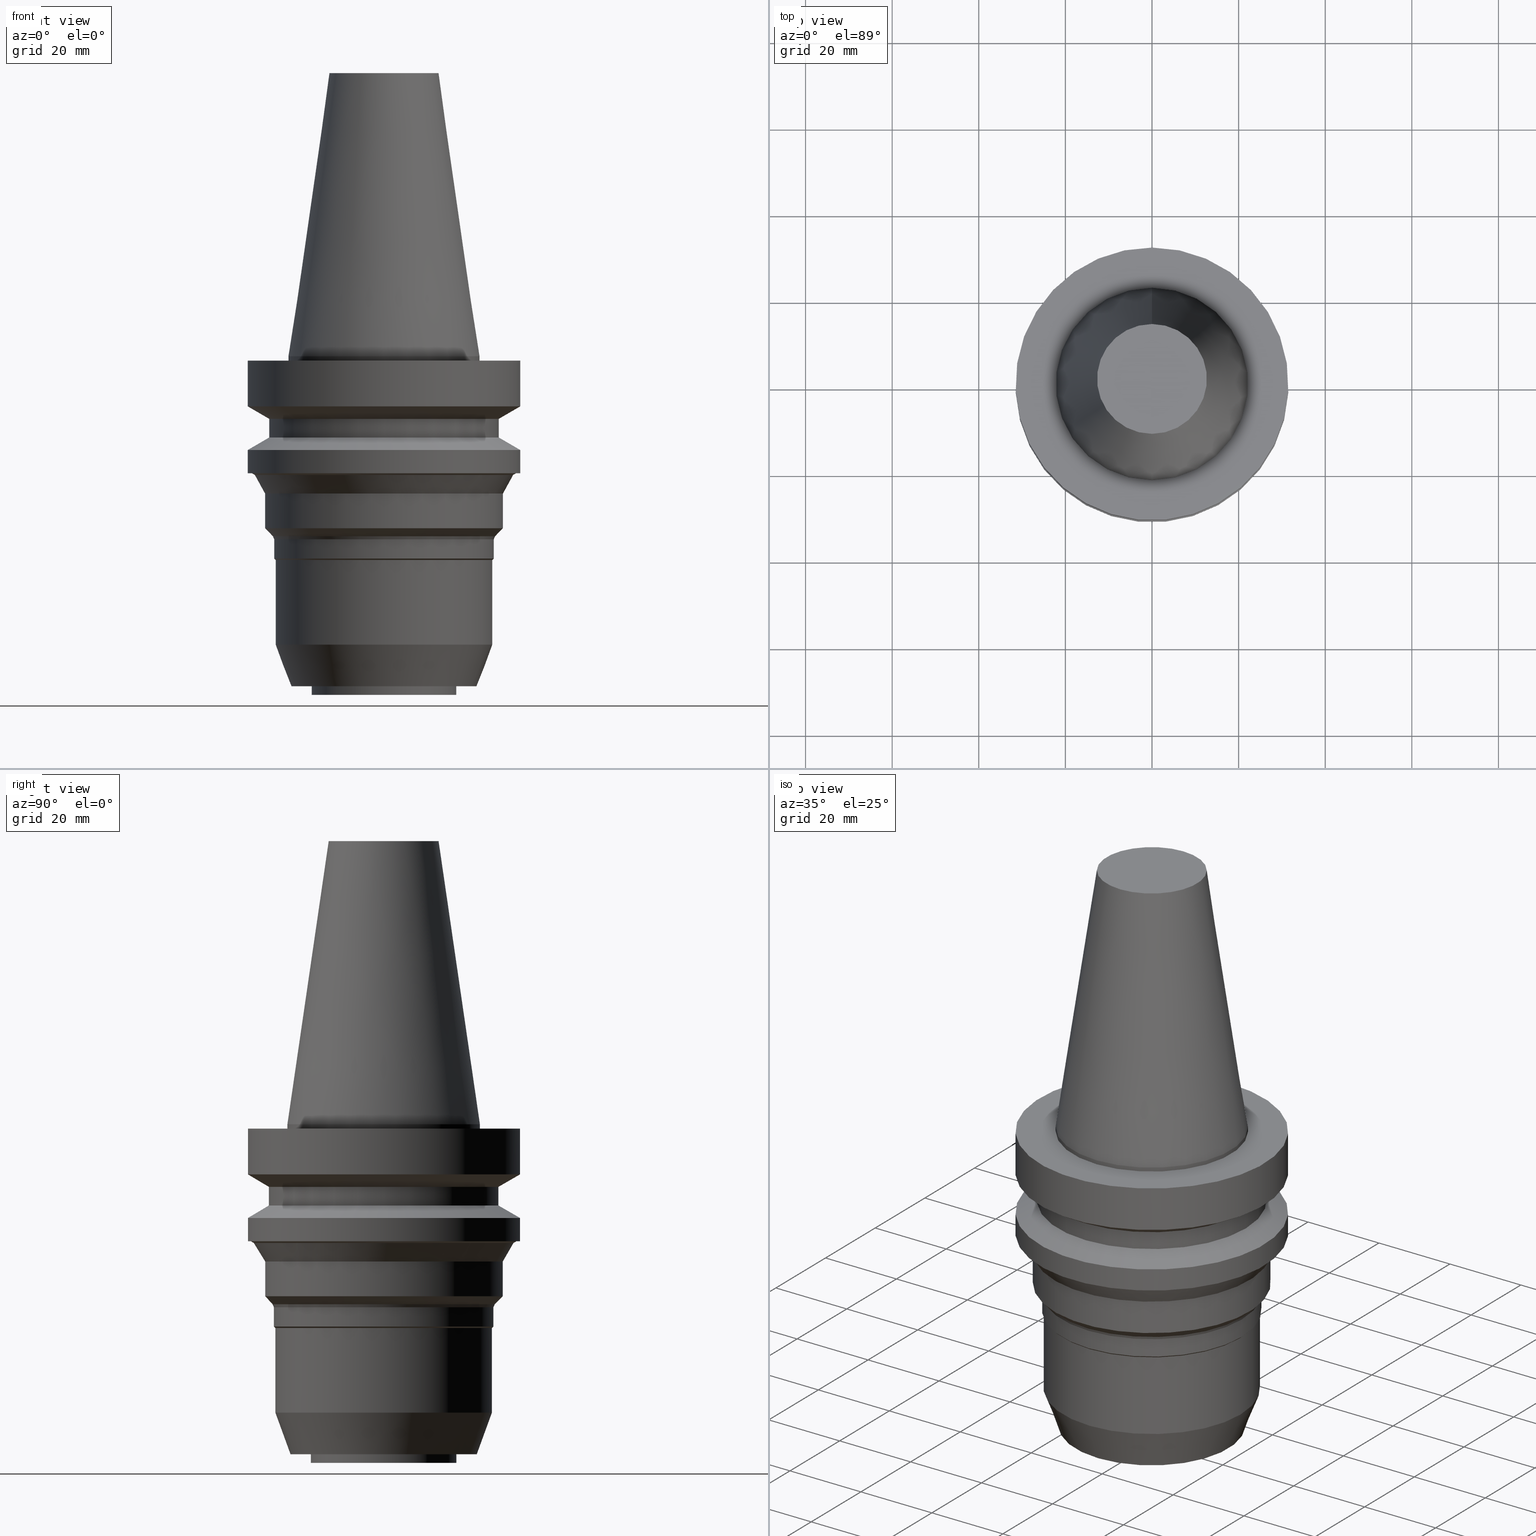
[diagram: canonical four-view strip — front | top / right | iso, engineering-drawing reading convention]
A machine part, canonical four-view strip (front | top / right | iso — engineering-drawing reading convention). The complete STEP part file that produces these views, byte-faithful:
ISO-10303-21;
HEADER;
FILE_DESCRIPTION((''),'1');
FILE_NAME('V:/90_\X2\53D65F9730C730FC30BF\X0\/00_\X2\6DE18DEF30C730FC30BF\X0\/ALL/BBT-BKUS\X2\FF76FF80FF9BFF78FF9E752852A05DE556F3\X0\201801/BBT40-MEGADS-A/BBT40-MEGA.750DS-3A.stp','2018-02-07T02:49:00',(''),(''),'Spatial Interop R21 SP3','Kubotek KeyCreator 2011 V10.0.2 (22737)',' ');
FILE_SCHEMA(('automotive_design'));
ENDSEC;
DATA;
#1=MECHANICAL_DESIGN_GEOMETRIC_PRESENTATION_REPRESENTATION(' ',(#10,#11,#12,#13,#14,#15,#16,#17,#18,#19,#20,#21,#22,#23,#24,#25,#26,#27,#28,#29,#30,#31,#32,#33,#34,#35,#36,#37,#38,#39,#40,#41,#42,#43,#44,#45,#46,#47,#48,#49,#50,#51,#52,#53),#6);
#2=PRODUCT_DEFINITION_CONTEXT('',#54,'design');
#3=APPLICATION_PROTOCOL_DEFINITION('INTERNATIONAL STANDARD','automotive_design',1994,#54);
#4=PRODUCT_CATEGORY_RELATIONSHIP('NONE','NONE',#55,#56);
#5=SHAPE_DEFINITION_REPRESENTATION(#57,#58);
#6= (GEOMETRIC_REPRESENTATION_CONTEXT(3)GLOBAL_UNCERTAINTY_ASSIGNED_CONTEXT((#61))GLOBAL_UNIT_ASSIGNED_CONTEXT((#63,#64,#65))REPRESENTATION_CONTEXT('NONE','WORKSPACE'));
#10=STYLED_ITEM('',(#67),#68);
#11=STYLED_ITEM('',(#69),#70);
#12=STYLED_ITEM('',(#71),#72);
#13=STYLED_ITEM('',(#73),#74);
#14=STYLED_ITEM('',(#75,#76),#77);
#15=STYLED_ITEM('',(#78,#79),#80);
#16=STYLED_ITEM('',(#81),#82);
#17=STYLED_ITEM('',(#83,#84),#85);
#18=STYLED_ITEM('',(#86,#87),#88);
#19=STYLED_ITEM('',(#89,#90),#91);
#20=STYLED_ITEM('',(#92,#93),#94);
#21=STYLED_ITEM('',(#95,#96),#97);
#22=STYLED_ITEM('',(#98),#99);
#23=STYLED_ITEM('',(#100,#101),#102);
#24=STYLED_ITEM('',(#103),#104);
#25=STYLED_ITEM('',(#105),#106);
#26=STYLED_ITEM('',(#107,#108),#109);
#27=STYLED_ITEM('',(#110),#111);
#28=STYLED_ITEM('',(#112),#113);
#29=STYLED_ITEM('',(#114),#115);
#30=STYLED_ITEM('',(#116,#117),#118);
#31=STYLED_ITEM('',(#119,#120),#121);
#32=STYLED_ITEM('',(#122),#123);
#33=STYLED_ITEM('',(#124),#125);
#34=STYLED_ITEM('',(#126),#127);
#35=STYLED_ITEM('',(#128),#129);
#36=STYLED_ITEM('',(#130),#131);
#37=STYLED_ITEM('',(#132),#133);
#38=STYLED_ITEM('',(#134),#135);
#39=STYLED_ITEM('',(#136,#137),#138);
#40=STYLED_ITEM('',(#139,#140),#141);
#41=STYLED_ITEM('',(#142,#143),#144);
#42=STYLED_ITEM('',(#145,#146),#147);
#43=STYLED_ITEM('',(#148,#149),#150);
#44=STYLED_ITEM('',(#151),#152);
#45=STYLED_ITEM('',(#153,#154),#155);
#46=STYLED_ITEM('',(#156),#157);
#47=STYLED_ITEM('',(#158,#159),#160);
#48=STYLED_ITEM('',(#161,#162),#163);
#49=STYLED_ITEM('',(#164,#165),#166);
#50=STYLED_ITEM('',(#167),#168);
#51=STYLED_ITEM('',(#169,#170),#171);
#52=STYLED_ITEM('',(#172,#173),#174);
#53=STYLED_ITEM('',(#175,#176),#177);
#54=APPLICATION_CONTEXT(' ');
#55=PRODUCT_CATEGORY('part','NONE');
#56=PRODUCT_RELATED_PRODUCT_CATEGORY('detail',' ',(#178));
#57=PRODUCT_DEFINITION_SHAPE('NONE','NONE',#179);
#58=ADVANCED_BREP_SHAPE_REPRESENTATION('Unnamed[1]',(#138,#180),#6);
#61=UNCERTAINTY_MEASURE_WITH_UNIT(LENGTH_MEASURE(1.0E-006),#63,'','');
#63= (CONVERSION_BASED_UNIT('MILLIMETRE',#183)LENGTH_UNIT()NAMED_UNIT(#186));
#64= (NAMED_UNIT(#188)PLANE_ANGLE_UNIT()SI_UNIT($,.RADIAN.));
#65= (NAMED_UNIT(#188)SOLID_ANGLE_UNIT()SI_UNIT($,.STERADIAN.));
#67=PRESENTATION_STYLE_ASSIGNMENT((#194));
#68=EDGE_CURVE('Unnamed[1]',#195,#195,#196,.T.);
#69=PRESENTATION_STYLE_ASSIGNMENT((#197));
#70=EDGE_CURVE('Unnamed[1]',#198,#198,#199,.T.);
#71=PRESENTATION_STYLE_ASSIGNMENT((#200));
#72=EDGE_CURVE('Unnamed[1]',#201,#201,#202,.T.);
#73=PRESENTATION_STYLE_ASSIGNMENT((#203));
#74=EDGE_CURVE('Unnamed[1]',#204,#204,#205,.T.);
#75=PRESENTATION_STYLE_ASSIGNMENT((#206));
#76=PRESENTATION_STYLE_ASSIGNMENT((#207));
#77=ADVANCED_FACE('Unnamed[1]',(#208,#209),#210,.T.);
#78=PRESENTATION_STYLE_ASSIGNMENT((#211));
#79=PRESENTATION_STYLE_ASSIGNMENT((#212));
#80=ADVANCED_FACE('Unnamed[1]',(#213,#214),#215,.T.);
#81=PRESENTATION_STYLE_ASSIGNMENT((#216));
#82=EDGE_CURVE('Unnamed[1]',#217,#217,#218,.T.);
#83=PRESENTATION_STYLE_ASSIGNMENT((#219));
#84=PRESENTATION_STYLE_ASSIGNMENT((#220));
#85=ADVANCED_FACE('Unnamed[1]',(#221,#222),#223,.T.);
#86=PRESENTATION_STYLE_ASSIGNMENT((#224));
#87=PRESENTATION_STYLE_ASSIGNMENT((#225));
#88=ADVANCED_FACE('Unnamed[1]',(#226,#227),#228,.T.);
#89=PRESENTATION_STYLE_ASSIGNMENT((#229));
#90=PRESENTATION_STYLE_ASSIGNMENT((#230));
#91=ADVANCED_FACE('Unnamed[1]',(#231),#232,.T.);
#92=PRESENTATION_STYLE_ASSIGNMENT((#233));
#93=PRESENTATION_STYLE_ASSIGNMENT((#234));
#94=ADVANCED_FACE('Unnamed[1]',(#235,#236),#237,.T.);
#95=PRESENTATION_STYLE_ASSIGNMENT((#238));
#96=PRESENTATION_STYLE_ASSIGNMENT((#239));
#97=ADVANCED_FACE('Unnamed[1]',(#240,#241),#242,.T.);
#98=PRESENTATION_STYLE_ASSIGNMENT((#243));
#99=EDGE_CURVE('Unnamed[1]',#244,#244,#245,.T.);
#100=PRESENTATION_STYLE_ASSIGNMENT((#246));
#101=PRESENTATION_STYLE_ASSIGNMENT((#247));
#102=ADVANCED_FACE('Unnamed[1]',(#248),#249,.T.);
#103=PRESENTATION_STYLE_ASSIGNMENT((#250));
#104=EDGE_CURVE('Unnamed[1]',#251,#251,#252,.T.);
#105=PRESENTATION_STYLE_ASSIGNMENT((#253));
#106=EDGE_CURVE('Unnamed[1]',#254,#254,#255,.T.);
#107=PRESENTATION_STYLE_ASSIGNMENT((#256));
#108=PRESENTATION_STYLE_ASSIGNMENT((#257));
#109=ADVANCED_FACE('Unnamed[1]',(#258,#259),#260,.T.);
#110=PRESENTATION_STYLE_ASSIGNMENT((#261));
#111=EDGE_CURVE('Unnamed[1]',#262,#262,#263,.T.);
#112=PRESENTATION_STYLE_ASSIGNMENT((#264));
#113=EDGE_CURVE('Unnamed[1]',#265,#265,#266,.T.);
#114=PRESENTATION_STYLE_ASSIGNMENT((#267));
#115=EDGE_CURVE('Unnamed[1]',#268,#268,#269,.T.);
#116=PRESENTATION_STYLE_ASSIGNMENT((#270));
#117=PRESENTATION_STYLE_ASSIGNMENT((#271));
#118=ADVANCED_FACE('Unnamed[1]',(#272,#273),#274,.T.);
#119=PRESENTATION_STYLE_ASSIGNMENT((#275));
#120=PRESENTATION_STYLE_ASSIGNMENT((#276));
#121=ADVANCED_FACE('Unnamed[1]',(#277,#278),#279,.T.);
#122=PRESENTATION_STYLE_ASSIGNMENT((#280));
#123=EDGE_CURVE('Unnamed[1]',#281,#281,#282,.T.);
#124=PRESENTATION_STYLE_ASSIGNMENT((#283));
#125=EDGE_CURVE('Unnamed[1]',#284,#284,#285,.T.);
#126=PRESENTATION_STYLE_ASSIGNMENT((#286));
#127=EDGE_CURVE('Unnamed[1]',#287,#287,#288,.T.);
#128=PRESENTATION_STYLE_ASSIGNMENT((#289));
#129=EDGE_CURVE('Unnamed[1]',#290,#290,#291,.T.);
#130=PRESENTATION_STYLE_ASSIGNMENT((#292));
#131=EDGE_CURVE('Unnamed[1]',#293,#293,#294,.T.);
#132=PRESENTATION_STYLE_ASSIGNMENT((#295));
#133=EDGE_CURVE('Unnamed[1]',#296,#296,#297,.T.);
#134=PRESENTATION_STYLE_ASSIGNMENT((#298));
#135=EDGE_CURVE('Unnamed[1]',#299,#299,#300,.T.);
#136=PRESENTATION_STYLE_ASSIGNMENT((#301));
#137=PRESENTATION_STYLE_ASSIGNMENT((#302));
#138=MANIFOLD_SOLID_BREP('Unnamed[1]',#303);
#139=PRESENTATION_STYLE_ASSIGNMENT((#304));
#140=PRESENTATION_STYLE_ASSIGNMENT((#305));
#141=ADVANCED_FACE('Unnamed[1]',(#306,#307),#308,.T.);
#142=PRESENTATION_STYLE_ASSIGNMENT((#309));
#143=PRESENTATION_STYLE_ASSIGNMENT((#310));
#144=ADVANCED_FACE('Unnamed[1]',(#311,#312),#313,.T.);
#145=PRESENTATION_STYLE_ASSIGNMENT((#314));
#146=PRESENTATION_STYLE_ASSIGNMENT((#315));
#147=ADVANCED_FACE('Unnamed[1]',(#316,#317),#318,.T.);
#148=PRESENTATION_STYLE_ASSIGNMENT((#319));
#149=PRESENTATION_STYLE_ASSIGNMENT((#320));
#150=ADVANCED_FACE('Unnamed[1]',(#321,#322),#323,.T.);
#151=PRESENTATION_STYLE_ASSIGNMENT((#324));
#152=EDGE_CURVE('Unnamed[1]',#325,#325,#326,.T.);
#153=PRESENTATION_STYLE_ASSIGNMENT((#327));
#154=PRESENTATION_STYLE_ASSIGNMENT((#328));
#155=ADVANCED_FACE('Unnamed[1]',(#329,#330),#331,.T.);
#156=PRESENTATION_STYLE_ASSIGNMENT((#332));
#157=EDGE_CURVE('Unnamed[1]',#333,#333,#334,.T.);
#158=PRESENTATION_STYLE_ASSIGNMENT((#335));
#159=PRESENTATION_STYLE_ASSIGNMENT((#336));
#160=ADVANCED_FACE('Unnamed[1]',(#337,#338),#339,.T.);
#161=PRESENTATION_STYLE_ASSIGNMENT((#340));
#162=PRESENTATION_STYLE_ASSIGNMENT((#341));
#163=ADVANCED_FACE('Unnamed[1]',(#342,#343),#344,.T.);
#164=PRESENTATION_STYLE_ASSIGNMENT((#345));
#165=PRESENTATION_STYLE_ASSIGNMENT((#346));
#166=ADVANCED_FACE('Unnamed[1]',(#347,#348),#349,.T.);
#167=PRESENTATION_STYLE_ASSIGNMENT((#350));
#168=EDGE_CURVE('Unnamed[1]',#351,#351,#352,.T.);
#169=PRESENTATION_STYLE_ASSIGNMENT((#353));
#170=PRESENTATION_STYLE_ASSIGNMENT((#354));
#171=ADVANCED_FACE('Unnamed[1]',(#355,#356),#357,.T.);
#172=PRESENTATION_STYLE_ASSIGNMENT((#358));
#173=PRESENTATION_STYLE_ASSIGNMENT((#359));
#174=ADVANCED_FACE('Unnamed[1]',(#360,#361),#362,.T.);
#175=PRESENTATION_STYLE_ASSIGNMENT((#363));
#176=PRESENTATION_STYLE_ASSIGNMENT((#364));
#177=ADVANCED_FACE('Unnamed[1]',(#365,#366),#367,.T.);
#178=PRODUCT('Unnamed[1]','Unnamed[1]','PART-Unnamed[1]-DESC',(#368));
#179=PRODUCT_DEFINITION('NONE','NONE',#369,#2);
#180=AXIS2_PLACEMENT_3D('',#370,#371,#372);
#183=LENGTH_MEASURE_WITH_UNIT(LENGTH_MEASURE(1.0),#373);
#186=DIMENSIONAL_EXPONENTS(1.0,0.0,0.0,0.0,0.0,0.0,0.0);
#188=DIMENSIONAL_EXPONENTS(0.0,0.0,0.0,0.0,0.0,0.0,0.0);
#194=CURVE_STYLE('',#374,POSITIVE_LENGTH_MEASURE(1000.0),#375);
#195=VERTEX_POINT('',#376);
#196=CIRCLE('',#377,31.5000000000003);
#197=CURVE_STYLE('',#378,POSITIVE_LENGTH_MEASURE(1000.0),#379);
#198=VERTEX_POINT('',#380);
#199=CIRCLE('',#381,29.9826061575155);
#200=CURVE_STYLE('',#382,POSITIVE_LENGTH_MEASURE(1000.0),#383);
#201=VERTEX_POINT('',#384);
#202=CIRCLE('',#385,27.5000000000001);
#203=CURVE_STYLE('',#386,POSITIVE_LENGTH_MEASURE(1000.0),#387);
#204=VERTEX_POINT('',#388);
#205=CIRCLE('',#389,25.6428932188133);
#206=SURFACE_STYLE_USAGE(.BOTH.,#390);
#207=CURVE_STYLE('',#391,POSITIVE_LENGTH_MEASURE(1000.0),#392);
#208=FACE_BOUND('',#393,.T.);
#209=FACE_BOUND('',#394,.T.);
#210=CONICAL_SURFACE('',#395,28.9999999999999,1.04719755119657);
#211=SURFACE_STYLE_USAGE(.BOTH.,#396);
#212=CURVE_STYLE('',#397,POSITIVE_LENGTH_MEASURE(1000.0),#398);
#213=FACE_BOUND('',#399,.T.);
#214=FACE_BOUND('',#400,.T.);
#215=CONICAL_SURFACE('',#401,25.1749999999999,0.785398163423961);
#216=CURVE_STYLE('',#402,POSITIVE_LENGTH_MEASURE(1000.0),#403);
#217=VERTEX_POINT('',#404);
#218=CIRCLE('',#405,30.6754264805441);
#219=SURFACE_STYLE_USAGE(.BOTH.,#406);
#220=CURVE_STYLE('',#407,POSITIVE_LENGTH_MEASURE(1000.0),#408);
#221=FACE_BOUND('',#409,.T.);
#222=FACE_BOUND('',#410,.T.);
#223=CONICAL_SURFACE('',#411,17.4562500000001,0.144812498238936);
#224=SURFACE_STYLE_USAGE(.BOTH.,#412);
#225=CURVE_STYLE('',#413,POSITIVE_LENGTH_MEASURE(1000.0),#414);
#226=FACE_OUTER_BOUND('',#415,.T.);
#227=FACE_BOUND('',#416,.T.);
#228=PLANE('',#417);
#229=SURFACE_STYLE_USAGE(.BOTH.,#418);
#230=CURVE_STYLE('',#419,POSITIVE_LENGTH_MEASURE(1000.0),#420);
#231=FACE_OUTER_BOUND('',#421,.T.);
#232=PLANE('',#422);
#233=SURFACE_STYLE_USAGE(.BOTH.,#423);
#234=CURVE_STYLE('',#424,POSITIVE_LENGTH_MEASURE(1000.0),#425);
#235=FACE_BOUND('',#426,.T.);
#236=FACE_BOUND('',#427,.T.);
#237=CONICAL_SURFACE('',#428,29.0000000000003,1.04719755119651);
#238=SURFACE_STYLE_USAGE(.BOTH.,#429);
#239=CURVE_STYLE('',#430,POSITIVE_LENGTH_MEASURE(1000.0),#431);
#240=FACE_BOUND('',#432,.T.);
#241=FACE_OUTER_BOUND('',#433,.T.);
#242=PLANE('',#434);
#243=CURVE_STYLE('',#435,POSITIVE_LENGTH_MEASURE(1000.0),#436);
#244=VERTEX_POINT('',#437);
#245=CIRCLE('',#438,31.5000000000003);
#246=SURFACE_STYLE_USAGE(.BOTH.,#439);
#247=CURVE_STYLE('',#440,POSITIVE_LENGTH_MEASURE(1000.0),#441);
#248=FACE_OUTER_BOUND('',#442,.T.);
#249=PLANE('',#443);
#250=CURVE_STYLE('',#444,POSITIVE_LENGTH_MEASURE(1000.0),#445);
#251=VERTEX_POINT('',#446);
#252=CIRCLE('',#447,22.225);
#253=CURVE_STYLE('',#448,POSITIVE_LENGTH_MEASURE(1000.0),#449);
#254=VERTEX_POINT('',#450);
#255=CIRCLE('',#451,31.5000000000007);
#256=SURFACE_STYLE_USAGE(.BOTH.,#452);
#257=CURVE_STYLE('',#453,POSITIVE_LENGTH_MEASURE(1000.0),#454);
#258=FACE_BOUND('',#455,.T.);
#259=FACE_BOUND('',#456,.T.);
#260=CYLINDRICAL_SURFACE('',#457,25.3499999999998);
#261=CURVE_STYLE('',#458,POSITIVE_LENGTH_MEASURE(1000.0),#459);
#262=VERTEX_POINT('',#460);
#263=CIRCLE('',#461,22.225);
#264=CURVE_STYLE('',#462,POSITIVE_LENGTH_MEASURE(1000.0),#463);
#265=VERTEX_POINT('',#464);
#266=CIRCLE('',#465,31.4999999999996);
#267=CURVE_STYLE('',#466,POSITIVE_LENGTH_MEASURE(1000.0),#467);
#268=VERTEX_POINT('',#468);
#269=CIRCLE('',#469,25.3499999999998);
#270=SURFACE_STYLE_USAGE(.BOTH.,#470);
#271=CURVE_STYLE('',#471,POSITIVE_LENGTH_MEASURE(1000.0),#472);
#272=FACE_BOUND('',#473,.T.);
#273=FACE_BOUND('',#474,.T.);
#274=CYLINDRICAL_SURFACE('',#475,31.5);
#275=SURFACE_STYLE_USAGE(.BOTH.,#476);
#276=CURVE_STYLE('',#477,POSITIVE_LENGTH_MEASURE(1000.0),#478);
#277=FACE_BOUND('',#479,.T.);
#278=FACE_BOUND('',#480,.T.);
#279=CYLINDRICAL_SURFACE('',#481,26.4999999999997);
#280=CURVE_STYLE('',#482,POSITIVE_LENGTH_MEASURE(1000.0),#483);
#281=VERTEX_POINT('',#484);
#282=CIRCLE('',#485,26.4999999999994);
#283=CURVE_STYLE('',#486,POSITIVE_LENGTH_MEASURE(1000.0),#487);
#284=VERTEX_POINT('',#488);
#285=CIRCLE('',#489,25.0);
#286=CURVE_STYLE('',#490,POSITIVE_LENGTH_MEASURE(1000.0),#491);
#287=VERTEX_POINT('',#492);
#288=CIRCLE('',#493,26.5);
#289=CURVE_STYLE('',#494,POSITIVE_LENGTH_MEASURE(1000.0),#495);
#290=VERTEX_POINT('',#496);
#291=CIRCLE('',#497,16.7999999999864);
#292=CURVE_STYLE('',#498,POSITIVE_LENGTH_MEASURE(1000.0),#499);
#293=VERTEX_POINT('',#500);
#294=CIRCLE('',#501,21.5000000000012);
#295=CURVE_STYLE('',#502,POSITIVE_LENGTH_MEASURE(1000.0),#503);
#296=VERTEX_POINT('',#504);
#297=CIRCLE('',#505,27.5000000000002);
#298=CURVE_STYLE('',#506,POSITIVE_LENGTH_MEASURE(1000.0),#507);
#299=VERTEX_POINT('',#508);
#300=CIRCLE('',#509,16.8000000000003);
#301=SURFACE_STYLE_USAGE(.BOTH.,#510);
#302=CURVE_STYLE('',#511,POSITIVE_LENGTH_MEASURE(1000.0),#512);
#303=CLOSED_SHELL('',(#102,#85,#171,#88,#118,#77,#121,#94,#174,#141,#177,#163,#150,#155,#147,#109,#80,#144,#166,#97,#160,#91));
#304=SURFACE_STYLE_USAGE(.BOTH.,#513);
#305=CURVE_STYLE('',#514,POSITIVE_LENGTH_MEASURE(1000.0),#515);
#306=FACE_BOUND('',#516,.T.);
#307=FACE_OUTER_BOUND('',#517,.T.);
#308=PLANE('',#518);
#309=SURFACE_STYLE_USAGE(.BOTH.,#519);
#310=CURVE_STYLE('',#520,POSITIVE_LENGTH_MEASURE(1000.0),#521);
#311=FACE_BOUND('',#522,.T.);
#312=FACE_BOUND('',#523,.T.);
#313=CYLINDRICAL_SURFACE('',#524,25.0);
#314=SURFACE_STYLE_USAGE(.BOTH.,#525);
#315=CURVE_STYLE('',#526,POSITIVE_LENGTH_MEASURE(1000.0),#527);
#316=FACE_BOUND('',#528,.T.);
#317=FACE_BOUND('',#529,.T.);
#318=CONICAL_SURFACE('',#530,25.4964466094066,0.392699081698752);
#319=SURFACE_STYLE_USAGE(.BOTH.,#531);
#320=CURVE_STYLE('',#532,POSITIVE_LENGTH_MEASURE(1000.0),#533);
#321=FACE_BOUND('',#534,.T.);
#322=FACE_BOUND('',#535,.T.);
#323=CYLINDRICAL_SURFACE('',#536,27.5000000000002);
#324=CURVE_STYLE('',#537,POSITIVE_LENGTH_MEASURE(1000.0),#538);
#325=VERTEX_POINT('',#539);
#326=CIRCLE('',#540,12.6875000000001);
#327=SURFACE_STYLE_USAGE(.BOTH.,#541);
#328=CURVE_STYLE('',#542,POSITIVE_LENGTH_MEASURE(1000.0),#543);
#329=FACE_BOUND('',#544,.T.);
#330=FACE_BOUND('',#545,.T.);
#331=CONICAL_SURFACE('',#546,26.5714466094068,0.785398163397476);
#332=CURVE_STYLE('',#547,POSITIVE_LENGTH_MEASURE(1000.0),#548);
#333=VERTEX_POINT('',#549);
#334=CIRCLE('',#550,25.3499999999999);
#335=SURFACE_STYLE_USAGE(.BOTH.,#551);
#336=CURVE_STYLE('',#552,POSITIVE_LENGTH_MEASURE(1000.0),#553);
#337=FACE_BOUND('',#554,.T.);
#338=FACE_BOUND('',#555,.T.);
#339=CYLINDRICAL_SURFACE('',#556,16.7999999999934);
#340=SURFACE_STYLE_USAGE(.BOTH.,#557);
#341=CURVE_STYLE('',#558,POSITIVE_LENGTH_MEASURE(1000.0),#559);
#342=FACE_BOUND('',#560,.T.);
#343=FACE_BOUND('',#561,.T.);
#344=CONICAL_SURFACE('',#562,28.7413030787578,0.523598775597999);
#345=SURFACE_STYLE_USAGE(.BOTH.,#563);
#346=CURVE_STYLE('',#564,POSITIVE_LENGTH_MEASURE(1000.0),#565);
#347=FACE_BOUND('',#566,.T.);
#348=FACE_BOUND('',#567,.T.);
#349=CONICAL_SURFACE('',#568,23.2500000000007,0.349065850399004);
#350=CURVE_STYLE('',#569,POSITIVE_LENGTH_MEASURE(1000.0),#570);
#351=VERTEX_POINT('',#571);
#352=CIRCLE('',#572,25.0000000000001);
#353=SURFACE_STYLE_USAGE(.BOTH.,#573);
#354=CURVE_STYLE('',#574,POSITIVE_LENGTH_MEASURE(1000.0),#575);
#355=FACE_BOUND('',#576,.T.);
#356=FACE_BOUND('',#577,.T.);
#357=CYLINDRICAL_SURFACE('',#578,22.225);
#358=SURFACE_STYLE_USAGE(.BOTH.,#579);
#359=CURVE_STYLE('',#580,POSITIVE_LENGTH_MEASURE(1000.0),#581);
#360=FACE_BOUND('',#582,.T.);
#361=FACE_BOUND('',#583,.T.);
#362=CYLINDRICAL_SURFACE('',#584,31.5000000000005);
#363=SURFACE_STYLE_USAGE(.BOTH.,#585);
#364=CURVE_STYLE('',#586,POSITIVE_LENGTH_MEASURE(1000.0),#587);
#365=FACE_BOUND('',#588,.T.);
#366=FACE_BOUND('',#589,.T.);
#367=CONICAL_SURFACE('',#590,30.3290163190298,1.04719755119793);
#368=PRODUCT_CONTEXT('',#54,'mechanical');
#369=PRODUCT_DEFINITION_FORMATION_WITH_SPECIFIED_SOURCE(' ','NONE',#178,.NOT_KNOWN.);
#370=CARTESIAN_POINT('',(0.0,0.0,0.0));
#371=DIRECTION('',(0.0,0.0,1.0));
#372=DIRECTION('',(1.0,0.0,0.0));
#373= (NAMED_UNIT(#186)LENGTH_UNIT()SI_UNIT(.MILLI.,.METRE.));
#374=DRAUGHTING_PRE_DEFINED_CURVE_FONT('continuous');
#375=COLOUR_RGB('',0.0,1.0,0.0);
#376=CARTESIAN_POINT('',(7.08182973902924E-016,31.5000000000004,-11.5655056526664));
#377=AXIS2_PLACEMENT_3D('',#592,#593,#594);
#378=DRAUGHTING_PRE_DEFINED_CURVE_FONT('continuous');
#379=COLOUR_RGB('',0.0,1.0,0.0);
#380=CARTESIAN_POINT('',(1.67776611483183E-015,29.9826061575155,-27.3999999999993));
#381=AXIS2_PLACEMENT_3D('',#595,#596,#597);
#382=DRAUGHTING_PRE_DEFINED_CURVE_FONT('continuous');
#383=COLOUR_RGB('',0.0,1.0,0.0);
#384=CARTESIAN_POINT('',(1.94106517664869E-015,27.5000000000002,-31.7000000000022));
#385=AXIS2_PLACEMENT_3D('',#598,#599,#600);
#386=DRAUGHTING_PRE_DEFINED_CURVE_FONT('continuous');
#387=COLOUR_RGB('',0.0,1.0,0.0);
#388=CARTESIAN_POINT('',(2.54461912698172E-015,25.6428932188133,-41.5567840254574));
#389=AXIS2_PLACEMENT_3D('',#601,#602,#603);
#390=SURFACE_SIDE_STYLE('',(#604));
#391=DRAUGHTING_PRE_DEFINED_CURVE_FONT('continuous');
#392=COLOUR_RGB('',0.0,1.0,0.0);
#393=EDGE_LOOP('',(#605));
#394=EDGE_LOOP('',(#606));
#395=AXIS2_PLACEMENT_3D('',#607,#608,#609);
#396=SURFACE_SIDE_STYLE('',(#610));
#397=DRAUGHTING_PRE_DEFINED_CURVE_FONT('continuous');
#398=COLOUR_RGB('',0.0,1.0,0.0);
#399=EDGE_LOOP('',(#611));
#400=EDGE_LOOP('',(#612));
#401=AXIS2_PLACEMENT_3D('',#613,#614,#615);
#402=DRAUGHTING_PRE_DEFINED_CURVE_FONT('continuous');
#403=COLOUR_RGB('',0.0,1.0,0.0);
#404=CARTESIAN_POINT('',(1.65327317884892E-015,30.6754264805441,-26.9999999999999));
#405=AXIS2_PLACEMENT_3D('',#616,#617,#618);
#406=SURFACE_SIDE_STYLE('',(#619));
#407=DRAUGHTING_PRE_DEFINED_CURVE_FONT('continuous');
#408=COLOUR_RGB('',0.0,1.0,0.0);
#409=EDGE_LOOP('',(#620));
#410=EDGE_LOOP('',(#621));
#411=AXIS2_PLACEMENT_3D('',#622,#623,#624);
#412=SURFACE_SIDE_STYLE('',(#625));
#413=DRAUGHTING_PRE_DEFINED_CURVE_FONT('continuous');
#414=COLOUR_RGB('',0.0,1.0,0.0);
#415=EDGE_LOOP('',(#626));
#416=EDGE_LOOP('',(#627));
#417=AXIS2_PLACEMENT_3D('',#628,#629,#630);
#418=SURFACE_SIDE_STYLE('',(#631));
#419=DRAUGHTING_PRE_DEFINED_CURVE_FONT('continuous');
#420=COLOUR_RGB('',0.0,1.0,0.0);
#421=EDGE_LOOP('',(#632));
#422=AXIS2_PLACEMENT_3D('',#633,#634,#635);
#423=SURFACE_SIDE_STYLE('',(#636));
#424=DRAUGHTING_PRE_DEFINED_CURVE_FONT('continuous');
#425=COLOUR_RGB('',0.0,1.0,0.0);
#426=EDGE_LOOP('',(#637));
#427=EDGE_LOOP('',(#638));
#428=AXIS2_PLACEMENT_3D('',#639,#640,#641);
#429=SURFACE_SIDE_STYLE('',(#642));
#430=DRAUGHTING_PRE_DEFINED_CURVE_FONT('continuous');
#431=COLOUR_RGB('',0.0,1.0,0.0);
#432=EDGE_LOOP('',(#643));
#433=EDGE_LOOP('',(#644));
#434=AXIS2_PLACEMENT_3D('',#645,#646,#647);
#435=DRAUGHTING_PRE_DEFINED_CURVE_FONT('continuous');
#436=COLOUR_RGB('',0.0,1.0,0.0);
#437=CARTESIAN_POINT('',(1.65327317884891E-015,31.5000000000004,-26.9999999999998));
#438=AXIS2_PLACEMENT_3D('',#648,#649,#650);
#439=SURFACE_SIDE_STYLE('',(#651));
#440=DRAUGHTING_PRE_DEFINED_CURVE_FONT('continuous');
#441=COLOUR_RGB('',0.0,1.0,0.0);
#442=EDGE_LOOP('',(#652));
#443=AXIS2_PLACEMENT_3D('',#653,#654,#655);
#444=DRAUGHTING_PRE_DEFINED_CURVE_FONT('continuous');
#445=COLOUR_RGB('',0.0,1.0,0.0);
#446=CARTESIAN_POINT('',(1.71319921032766E-029,22.2250000000001,-2.8153873565375E-013));
#447=AXIS2_PLACEMENT_3D('',#656,#657,#658);
#448=DRAUGHTING_PRE_DEFINED_CURVE_FONT('continuous');
#449=COLOUR_RGB('',0.0,1.0,0.0);
#450=CARTESIAN_POINT('',(1.32473071268174E-015,31.5000000000007,-21.6344943473346));
#451=AXIS2_PLACEMENT_3D('',#659,#660,#661);
#452=SURFACE_SIDE_STYLE('',(#662));
#453=DRAUGHTING_PRE_DEFINED_CURVE_FONT('continuous');
#454=COLOUR_RGB('',0.0,1.0,0.0);
#455=EDGE_LOOP('',(#663));
#456=EDGE_LOOP('',(#664));
#457=AXIS2_PLACEMENT_3D('',#665,#666,#667);
#458=DRAUGHTING_PRE_DEFINED_CURVE_FONT('continuous');
#459=COLOUR_RGB('',0.0,1.0,0.0);
#460=CARTESIAN_POINT('',(6.12323399573622E-017,22.2250000000001,-0.999999999999912));
#461=AXIS2_PLACEMENT_3D('',#668,#669,#670);
#462=DRAUGHTING_PRE_DEFINED_CURVE_FONT('continuous');
#463=COLOUR_RGB('',0.0,1.0,0.0);
#464=CARTESIAN_POINT('',(6.12323399573568E-017,31.4999999999997,-0.999999999999825));
#465=AXIS2_PLACEMENT_3D('',#671,#672,#673);
#466=DRAUGHTING_PRE_DEFINED_CURVE_FONT('continuous');
#467=COLOUR_RGB('',0.0,1.0,0.0);
#468=CARTESIAN_POINT('',(2.58791692979349E-015,25.3499999999998,-42.263890806644));
#469=AXIS2_PLACEMENT_3D('',#674,#675,#676);
#470=SURFACE_SIDE_STYLE('',(#677));
#471=DRAUGHTING_PRE_DEFINED_CURVE_FONT('continuous');
#472=COLOUR_RGB('',0.0,1.0,0.0);
#473=EDGE_LOOP('',(#678));
#474=EDGE_LOOP('',(#679));
#475=AXIS2_PLACEMENT_3D('',#680,#681,#682);
#476=SURFACE_SIDE_STYLE('',(#683));
#477=DRAUGHTING_PRE_DEFINED_CURVE_FONT('continuous');
#478=COLOUR_RGB('',0.0,1.0,0.0);
#479=EDGE_LOOP('',(#684));
#480=EDGE_LOOP('',(#685));
#481=AXIS2_PLACEMENT_3D('',#686,#687,#688);
#482=DRAUGHTING_PRE_DEFINED_CURVE_FONT('continuous');
#483=COLOUR_RGB('',0.0,1.0,0.0);
#484=CARTESIAN_POINT('',(8.8494551369045E-016,26.4999999999995,-14.4522569986152));
#485=AXIS2_PLACEMENT_3D('',#689,#690,#691);
#486=DRAUGHTING_PRE_DEFINED_CURVE_FONT('continuous');
#487=COLOUR_RGB('',0.0,1.0,0.0);
#488=CARTESIAN_POINT('',(2.88096183190448E-015,25.0,-47.0496772442524));
#489=AXIS2_PLACEMENT_3D('',#692,#693,#694);
#490=DRAUGHTING_PRE_DEFINED_CURVE_FONT('continuous');
#491=COLOUR_RGB('',0.0,1.0,0.0);
#492=CARTESIAN_POINT('',(1.1479681728942E-015,26.5,-18.7477430013855));
#493=AXIS2_PLACEMENT_3D('',#695,#696,#697);
#494=DRAUGHTING_PRE_DEFINED_CURVE_FONT('continuous');
#495=COLOUR_RGB('',0.0,1.0,0.0);
#496=CARTESIAN_POINT('',(4.78836898466613E-015,16.7999999999865,-78.1999999999997));
#497=AXIS2_PLACEMENT_3D('',#698,#699,#700);
#498=DRAUGHTING_PRE_DEFINED_CURVE_FONT('continuous');
#499=COLOUR_RGB('',0.0,1.0,0.0);
#500=CARTESIAN_POINT('',(4.66590430475125E-015,21.5000000000012,-76.1999999999973));
#501=AXIS2_PLACEMENT_3D('',#701,#702,#703);
#502=DRAUGHTING_PRE_DEFINED_CURVE_FONT('continuous');
#503=COLOUR_RGB('',0.0,1.0,0.0);
#504=CARTESIAN_POINT('',(2.43090413321895E-015,27.5000000000003,-39.6996772442706));
#505=AXIS2_PLACEMENT_3D('',#704,#705,#706);
#506=DRAUGHTING_PRE_DEFINED_CURVE_FONT('continuous');
#507=COLOUR_RGB('',0.0,1.0,0.0);
#508=CARTESIAN_POINT('',(4.66590430475131E-015,16.8000000000003,-76.1999999999982));
#509=AXIS2_PLACEMENT_3D('',#707,#708,#709);
#510=SURFACE_SIDE_STYLE('',(#710));
#511=DRAUGHTING_PRE_DEFINED_CURVE_FONT('continuous');
#512=COLOUR_RGB('',0.0,1.0,0.0);
#513=SURFACE_SIDE_STYLE('',(#711));
#514=DRAUGHTING_PRE_DEFINED_CURVE_FONT('continuous');
#515=COLOUR_RGB('',0.0,1.0,0.0);
#516=EDGE_LOOP('',(#712));
#517=EDGE_LOOP('',(#713));
#518=AXIS2_PLACEMENT_3D('',#714,#715,#716);
#519=SURFACE_SIDE_STYLE('',(#717));
#520=DRAUGHTING_PRE_DEFINED_CURVE_FONT('continuous');
#521=COLOUR_RGB('',0.0,1.0,0.0);
#522=EDGE_LOOP('',(#718));
#523=EDGE_LOOP('',(#719));
#524=AXIS2_PLACEMENT_3D('',#720,#721,#722);
#525=SURFACE_SIDE_STYLE('',(#723));
#526=DRAUGHTING_PRE_DEFINED_CURVE_FONT('continuous');
#527=COLOUR_RGB('',0.0,1.0,0.0);
#528=EDGE_LOOP('',(#724));
#529=EDGE_LOOP('',(#725));
#530=AXIS2_PLACEMENT_3D('',#726,#727,#728);
#531=SURFACE_SIDE_STYLE('',(#729));
#532=DRAUGHTING_PRE_DEFINED_CURVE_FONT('continuous');
#533=COLOUR_RGB('',0.0,1.0,0.0);
#534=EDGE_LOOP('',(#730));
#535=EDGE_LOOP('',(#731));
#536=AXIS2_PLACEMENT_3D('',#732,#733,#734);
#537=DRAUGHTING_PRE_DEFINED_CURVE_FONT('continuous');
#538=COLOUR_RGB('',0.0,1.0,0.0);
#539=CARTESIAN_POINT('',(-4.00459503321185E-015,12.6875000000002,65.4000000000001));
#540=AXIS2_PLACEMENT_3D('',#735,#736,#737);
#541=SURFACE_SIDE_STYLE('',(#738));
#542=DRAUGHTING_PRE_DEFINED_CURVE_FONT('continuous');
#543=COLOUR_RGB('',0.0,1.0,0.0);
#544=EDGE_LOOP('',(#739));
#545=EDGE_LOOP('',(#740));
#546=AXIS2_PLACEMENT_3D('',#741,#742,#743);
#547=DRAUGHTING_PRE_DEFINED_CURVE_FONT('continuous');
#548=COLOUR_RGB('',0.0,1.0,0.0);
#549=CARTESIAN_POINT('',(2.85953051292055E-015,25.3499999999999,-46.6996772442711));
#550=AXIS2_PLACEMENT_3D('',#744,#745,#746);
#551=SURFACE_SIDE_STYLE('',(#747));
#552=DRAUGHTING_PRE_DEFINED_CURVE_FONT('continuous');
#553=COLOUR_RGB('',0.0,1.0,0.0);
#554=EDGE_LOOP('',(#748));
#555=EDGE_LOOP('',(#749));
#556=AXIS2_PLACEMENT_3D('',#750,#751,#752);
#557=SURFACE_SIDE_STYLE('',(#753));
#558=DRAUGHTING_PRE_DEFINED_CURVE_FONT('continuous');
#559=COLOUR_RGB('',0.0,1.0,0.0);
#560=EDGE_LOOP('',(#754));
#561=EDGE_LOOP('',(#755));
#562=AXIS2_PLACEMENT_3D('',#756,#757,#758);
#563=SURFACE_SIDE_STYLE('',(#759));
#564=DRAUGHTING_PRE_DEFINED_CURVE_FONT('continuous');
#565=COLOUR_RGB('',0.0,1.0,0.0);
#566=EDGE_LOOP('',(#760));
#567=EDGE_LOOP('',(#761));
#568=AXIS2_PLACEMENT_3D('',#762,#763,#764);
#569=DRAUGHTING_PRE_DEFINED_CURVE_FONT('continuous');
#570=COLOUR_RGB('',0.0,1.0,0.0);
#571=CARTESIAN_POINT('',(4.07708365494536E-015,25.0000000000001,-66.5838290319134));
#572=AXIS2_PLACEMENT_3D('',#765,#766,#767);
#573=SURFACE_SIDE_STYLE('',(#768));
#574=DRAUGHTING_PRE_DEFINED_CURVE_FONT('continuous');
#575=COLOUR_RGB('',0.0,1.0,0.0);
#576=EDGE_LOOP('',(#769));
#577=EDGE_LOOP('',(#770));
#578=AXIS2_PLACEMENT_3D('',#771,#772,#773);
#579=SURFACE_SIDE_STYLE('',(#774));
#580=DRAUGHTING_PRE_DEFINED_CURVE_FONT('continuous');
#581=COLOUR_RGB('',0.0,1.0,0.0);
#582=EDGE_LOOP('',(#775));
#583=EDGE_LOOP('',(#776));
#584=AXIS2_PLACEMENT_3D('',#777,#778,#779);
#585=SURFACE_SIDE_STYLE('',(#780));
#586=DRAUGHTING_PRE_DEFINED_CURVE_FONT('continuous');
#587=COLOUR_RGB('',0.0,1.0,0.0);
#588=EDGE_LOOP('',(#781));
#589=EDGE_LOOP('',(#782));
#590=AXIS2_PLACEMENT_3D('',#783,#784,#785);
#592=CARTESIAN_POINT('',(7.08182973902923E-016,4.12325826952919E-014,-11.5655056526663));
#593=DIRECTION('',(6.12323399573677E-017,-4.60918739095494E-016,-1.0));
#594=DIRECTION('',(2.33959801942475E-032,1.0,-4.60918739095494E-016));
#595=CARTESIAN_POINT('',(1.67776611483183E-015,3.39341675265045E-014,-27.3999999999992));
#596=DIRECTION('',(6.12323399573677E-017,-4.60918739095494E-016,-1.0));
#597=DIRECTION('',(2.33959801942475E-032,1.0,-4.60918739095494E-016));
#598=CARTESIAN_POINT('',(1.94106517664869E-015,3.19522169483925E-014,-31.7000000000022));
#599=DIRECTION('',(6.12323399573677E-017,-4.60918739095494E-016,-1.0));
#600=DIRECTION('',(2.33959801942475E-032,1.0,-4.60918739095494E-016));
#601=CARTESIAN_POINT('',(2.54461912698172E-015,2.74090404838431E-014,-41.5567840254574));
#602=DIRECTION('',(6.12323399573677E-017,-4.60918739095494E-016,-1.0));
#603=DIRECTION('',(2.33959801942475E-032,1.0,-4.60918739095494E-016));
#604=SURFACE_STYLE_FILL_AREA(#786);
#605=ORIENTED_EDGE('',*,*,#123,.F.);
#606=ORIENTED_EDGE('',*,*,#68,.T.);
#607=CARTESIAN_POINT('',(7.96564243796687E-016,4.05673038000634E-014,-13.0088813256408));
#608=DIRECTION('',(-6.12323399573677E-017,4.60918739095494E-016,1.0));
#609=DIRECTION('',(2.33959801942475E-032,1.0,-4.60918739095494E-016));
#610=SURFACE_STYLE_FILL_AREA(#787);
#611=ORIENTED_EDGE('',*,*,#125,.F.);
#612=ORIENTED_EDGE('',*,*,#157,.T.);
#613=CARTESIAN_POINT('',(2.87024617241252E-015,2.49579238467874E-014,-46.8746772442617));
#614=DIRECTION('',(-6.12323399573676E-017,4.60918739095494E-016,1.0));
#615=DIRECTION('',(2.33959801942475E-032,1.0,-4.60918739095494E-016));
#616=CARTESIAN_POINT('',(1.65327317884892E-015,3.41185350221424E-014,-26.9999999999999));
#617=DIRECTION('',(6.12323399573677E-017,-4.60918739095494E-016,-1.0));
#618=DIRECTION('',(2.33959801942475E-032,1.0,-4.60918739095494E-016));
#619=SURFACE_STYLE_FILL_AREA(#788);
#620=ORIENTED_EDGE('',*,*,#104,.F.);
#621=ORIENTED_EDGE('',*,*,#152,.T.);
#622=CARTESIAN_POINT('',(-2.00229751660592E-015,6.16353837461433E-014,32.6999999999999));
#623=DIRECTION('',(6.12323399573677E-017,-4.60918739095494E-016,-1.0));
#624=DIRECTION('',(2.33959801942475E-032,1.0,-4.60918739095494E-016));
#625=SURFACE_STYLE_FILL_AREA(#789);
#626=ORIENTED_EDGE('',*,*,#113,.F.);
#627=ORIENTED_EDGE('',*,*,#111,.T.);
#628=CARTESIAN_POINT('',(6.12323399573595E-017,26.8624999999999,-0.999999999999869));
#629=DIRECTION('',(-6.12323399573677E-017,-9.35138060429241E-015,1.0));
#630=DIRECTION('',(5.77434068963536E-031,-1.0,-9.35138060429241E-015));
#631=SURFACE_STYLE_FILL_AREA(#790);
#632=ORIENTED_EDGE('',*,*,#129,.T.);
#633=CARTESIAN_POINT('',(4.78836898466614E-015,8.39999999999323,-78.1999999999998));
#634=DIRECTION('',(6.12323399573677E-017,1.78860330739316E-014,-1.0));
#635=DIRECTION('',(-1.10003081040247E-030,1.0,1.78860330739316E-014));
#636=SURFACE_STYLE_FILL_AREA(#791);
#637=ORIENTED_EDGE('',*,*,#106,.F.);
#638=ORIENTED_EDGE('',*,*,#127,.T.);
#639=CARTESIAN_POINT('',(1.23634944278797E-015,3.72568760174072E-014,-20.1911186743601));
#640=DIRECTION('',(6.12323399573677E-017,-4.60918739095494E-016,-1.0));
#641=DIRECTION('',(2.33959801942475E-032,1.0,-4.60918739095494E-016));
#642=SURFACE_STYLE_FILL_AREA(#792);
#643=ORIENTED_EDGE('',*,*,#135,.F.);
#644=ORIENTED_EDGE('',*,*,#131,.T.);
#645=CARTESIAN_POINT('',(4.66590430475128E-015,19.1500000000008,-76.1999999999977));
#646=DIRECTION('',(6.12323399573677E-017,2.02702734024244E-013,-1.0));
#647=DIRECTION('',(-1.24167898727912E-029,1.0,2.02702734024244E-013));
#648=CARTESIAN_POINT('',(1.65327317884891E-015,3.41185350221425E-014,-26.9999999999998));
#649=DIRECTION('',(6.12323399573677E-017,-4.60918739095494E-016,-1.0));
#650=DIRECTION('',(2.33959801942475E-032,1.0,-4.60918739095494E-016));
#651=SURFACE_STYLE_FILL_AREA(#793);
#652=ORIENTED_EDGE('',*,*,#152,.F.);
#653=CARTESIAN_POINT('',(-4.00459503321185E-015,6.34375000000014,65.4000000000001));
#654=DIRECTION('',(-6.12323399573677E-017,9.97602686800683E-016,1.0));
#655=DIRECTION('',(-5.62583941297938E-032,-1.0,9.97602686800683E-016));
#656=CARTESIAN_POINT('',(1.65331138531142E-029,4.65633409777206E-014,-2.70006239588838E-013));
#657=DIRECTION('',(6.12323399573677E-017,-4.60918739095494E-016,-1.0));
#658=DIRECTION('',(2.33959801942475E-032,1.0,-4.60918739095494E-016));
#659=CARTESIAN_POINT('',(1.32473071268174E-015,3.65915971221786E-014,-21.6344943473346));
#660=DIRECTION('',(6.12323399573677E-017,-4.60918739095494E-016,-1.0));
#661=DIRECTION('',(2.33959801942475E-032,1.0,-4.60918739095494E-016));
#662=SURFACE_STYLE_FILL_AREA(#794);
#663=ORIENTED_EDGE('',*,*,#157,.F.);
#664=ORIENTED_EDGE('',*,*,#115,.T.);
#665=CARTESIAN_POINT('',(2.72372372135702E-015,2.60608531719887E-014,-44.4817840254575));
#666=DIRECTION('',(6.12323399573677E-017,-4.60918739095494E-016,-1.0));
#667=DIRECTION('',(2.33959801942475E-032,1.0,-4.60918739095494E-016));
#668=CARTESIAN_POINT('',(6.12323399573616E-017,4.61024222386252E-014,-0.999999999999901));
#669=DIRECTION('',(6.12323399573677E-017,-4.60918739095494E-016,-1.0));
#670=DIRECTION('',(2.33959801942475E-032,1.0,-4.60918739095494E-016));
#671=CARTESIAN_POINT('',(6.12323399573563E-017,4.61024222386253E-014,-0.999999999999815));
#672=DIRECTION('',(6.12323399573677E-017,-4.60918739095494E-016,-1.0));
#673=DIRECTION('',(2.33959801942475E-032,1.0,-4.60918739095494E-016));
#674=CARTESIAN_POINT('',(2.58791692979349E-015,2.70831217178527E-014,-42.263890806644));
#675=DIRECTION('',(6.12323399573677E-017,-4.60918739095494E-016,-1.0));
#676=DIRECTION('',(2.33959801942475E-032,1.0,-4.60918739095494E-016));
#677=SURFACE_STYLE_FILL_AREA(#795);
#678=ORIENTED_EDGE('',*,*,#68,.F.);
#679=ORIENTED_EDGE('',*,*,#113,.T.);
#680=CARTESIAN_POINT('',(3.8470765693014E-016,4.36675024669586E-014,-6.28275282633308));
#681=DIRECTION('',(6.12323399573677E-017,-4.60918739095494E-016,-1.0));
#682=DIRECTION('',(2.33959801942475E-032,1.0,-4.60918739095494E-016));
#683=SURFACE_STYLE_FILL_AREA(#796);
#684=ORIENTED_EDGE('',*,*,#127,.F.);
#685=ORIENTED_EDGE('',*,*,#123,.T.);
#686=CARTESIAN_POINT('',(1.01645684329232E-015,3.89120899087353E-014,-16.6000000000003));
#687=DIRECTION('',(6.12323399573677E-017,-4.60918739095494E-016,-1.0));
#688=DIRECTION('',(2.33959801942475E-032,1.0,-4.60918739095494E-016));
#689=CARTESIAN_POINT('',(8.8494551369045E-016,3.9902024904835E-014,-14.4522569986152));
#690=DIRECTION('',(6.12323399573677E-017,-4.60918739095494E-016,-1.0));
#691=DIRECTION('',(2.33959801942475E-032,1.0,-4.60918739095494E-016));
#692=CARTESIAN_POINT('',(2.88096183190448E-015,2.487726306745E-014,-47.0496772442523));
#693=DIRECTION('',(6.12323399573676E-017,-4.60918739095494E-016,-1.0));
#694=DIRECTION('',(2.33959801942475E-032,1.0,-4.60918739095494E-016));
#695=CARTESIAN_POINT('',(1.1479681728942E-015,3.79221549126357E-014,-18.7477430013855));
#696=DIRECTION('',(6.12323399573676E-017,-4.60918739095494E-016,-1.0));
#697=DIRECTION('',(2.33959801942475E-032,1.0,-4.60918739095494E-016));
#698=CARTESIAN_POINT('',(4.78836898466613E-015,1.05194955804532E-014,-78.1999999999997));
#699=DIRECTION('',(6.12323399573676E-017,-4.60918739095494E-016,-1.0));
#700=DIRECTION('',(2.33959801942475E-032,1.0,-4.60918739095494E-016));
#701=CARTESIAN_POINT('',(4.66590430475125E-015,1.14413330586453E-014,-76.1999999999973));
#702=DIRECTION('',(6.12323399573677E-017,-4.60918739095494E-016,-1.0));
#703=DIRECTION('',(2.33959801942475E-032,1.0,-4.60918739095494E-016));
#704=CARTESIAN_POINT('',(2.43090413321895E-015,2.82650157997934E-014,-39.6996772442706));
#705=DIRECTION('',(6.12323399573677E-017,-4.60918739095494E-016,-1.0));
#706=DIRECTION('',(2.33959801942475E-032,1.0,-4.60918739095494E-016));
#707=CARTESIAN_POINT('',(4.66590430475131E-015,1.14413330586449E-014,-76.1999999999982));
#708=DIRECTION('',(6.12323399573676E-017,-4.60918739095494E-016,-1.0));
#709=DIRECTION('',(2.33959801942475E-032,1.0,-4.60918739095494E-016));
#710=SURFACE_STYLE_FILL_AREA(#797);
#711=SURFACE_STYLE_FILL_AREA(#798);
#712=ORIENTED_EDGE('',*,*,#82,.F.);
#713=ORIENTED_EDGE('',*,*,#99,.T.);
#714=CARTESIAN_POINT('',(1.65327317884892E-015,31.0877132402722,-26.9999999999998));
#715=DIRECTION('',(6.12323399573677E-017,1.59538699877836E-013,-1.0));
#716=DIRECTION('',(-9.77375506000689E-030,1.0,1.59538699877836E-013));
#717=SURFACE_STYLE_FILL_AREA(#799);
#718=ORIENTED_EDGE('',*,*,#168,.F.);
#719=ORIENTED_EDGE('',*,*,#125,.T.);
#720=CARTESIAN_POINT('',(3.47902274342492E-015,2.03754347618156E-014,-56.8167531380828));
#721=DIRECTION('',(6.12323399573677E-017,-4.60918739095494E-016,-1.0));
#722=DIRECTION('',(2.33959801942475E-032,1.0,-4.60918739095494E-016));
#723=SURFACE_STYLE_FILL_AREA(#800);
#724=ORIENTED_EDGE('',*,*,#115,.F.);
#725=ORIENTED_EDGE('',*,*,#74,.T.);
#726=CARTESIAN_POINT('',(2.5662680283876E-015,2.72460811008479E-014,-41.9103374160507));
#727=DIRECTION('',(-6.12323399573677E-017,4.60918739095494E-016,1.0));
#728=DIRECTION('',(2.33959801942475E-032,1.0,-4.60918739095494E-016));
#729=SURFACE_STYLE_FILL_AREA(#801);
#730=ORIENTED_EDGE('',*,*,#133,.F.);
#731=ORIENTED_EDGE('',*,*,#72,.T.);
#732=CARTESIAN_POINT('',(2.18598465493382E-015,3.0108616374093E-014,-35.6998386221364));
#733=DIRECTION('',(6.12323399573677E-017,-4.60918739095494E-016,-1.0));
#734=DIRECTION('',(2.33959801942475E-032,1.0,-4.60918739095494E-016));
#735=CARTESIAN_POINT('',(-4.00459503321185E-015,7.6707426514566E-014,65.4000000000001));
#736=DIRECTION('',(6.12323399573677E-017,-4.60918739095494E-016,-1.0));
#737=DIRECTION('',(2.33959801942475E-032,1.0,-4.60918739095494E-016));
#738=SURFACE_STYLE_FILL_AREA(#802);
#739=ORIENTED_EDGE('',*,*,#74,.F.);
#740=ORIENTED_EDGE('',*,*,#133,.T.);
#741=CARTESIAN_POINT('',(2.48776163010033E-015,2.78370281418183E-014,-40.628230634864));
#742=DIRECTION('',(-6.12323399573677E-017,4.60918739095494E-016,1.0));
#743=DIRECTION('',(2.33959801942475E-032,1.0,-4.60918739095494E-016));
#744=CARTESIAN_POINT('',(2.85953051292055E-015,2.50385846261248E-014,-46.699677244271));
#745=DIRECTION('',(6.12323399573677E-017,-4.60918739095494E-016,-1.0));
#746=DIRECTION('',(2.33959801942475E-032,1.0,-4.60918739095494E-016));
#747=SURFACE_STYLE_FILL_AREA(#803);
#748=ORIENTED_EDGE('',*,*,#129,.F.);
#749=ORIENTED_EDGE('',*,*,#135,.T.);
#750=CARTESIAN_POINT('',(4.72713664470872E-015,1.0980414319549E-014,-77.199999999999));
#751=DIRECTION('',(6.12323399573676E-017,-4.60918739095494E-016,-1.0));
#752=DIRECTION('',(2.33959801942475E-032,1.0,-4.60918739095494E-016));
#753=SURFACE_STYLE_FILL_AREA(#804);
#754=ORIENTED_EDGE('',*,*,#72,.F.);
#755=ORIENTED_EDGE('',*,*,#70,.T.);
#756=CARTESIAN_POINT('',(1.80941564574026E-015,3.29431922374485E-014,-29.5500000000007));
#757=DIRECTION('',(-6.12323399573677E-017,4.60918739095494E-016,1.0));
#758=DIRECTION('',(2.33959801942475E-032,1.0,-4.60918739095494E-016));
#759=SURFACE_STYLE_FILL_AREA(#805);
#760=ORIENTED_EDGE('',*,*,#131,.F.);
#761=ORIENTED_EDGE('',*,*,#168,.T.);
#762=CARTESIAN_POINT('',(4.37149397984831E-015,1.36574697574133E-014,-71.3919145159553));
#763=DIRECTION('',(-6.12323399573677E-017,4.60918739095494E-016,1.0));
#764=DIRECTION('',(2.33959801942475E-032,1.0,-4.60918739095494E-016));
#765=CARTESIAN_POINT('',(4.07708365494536E-015,1.58736064561813E-014,-66.5838290319133));
#766=DIRECTION('',(6.12323399573677E-017,-4.60918739095494E-016,-1.0));
#767=DIRECTION('',(2.33959801942475E-032,1.0,-4.60918739095494E-016));
#768=SURFACE_STYLE_FILL_AREA(#806);
#769=ORIENTED_EDGE('',*,*,#111,.F.);
#770=ORIENTED_EDGE('',*,*,#104,.T.);
#771=CARTESIAN_POINT('',(3.06161699786891E-017,4.63328816081729E-014,-0.500000000000085));
#772=DIRECTION('',(6.12323399573677E-017,-4.60918739095494E-016,-1.0));
#773=DIRECTION('',(2.33959801942475E-032,1.0,-4.60918739095494E-016));
#774=SURFACE_STYLE_FILL_AREA(#807);
#775=ORIENTED_EDGE('',*,*,#99,.F.);
#776=ORIENTED_EDGE('',*,*,#106,.T.);
#777=CARTESIAN_POINT('',(1.48900194576533E-015,3.53550660721605E-014,-24.3172471736672));
#778=DIRECTION('',(6.12323399573677E-017,-4.60918739095494E-016,-1.0));
#779=DIRECTION('',(2.33959801942475E-032,1.0,-4.60918739095494E-016));
#780=SURFACE_STYLE_FILL_AREA(#808);
#781=ORIENTED_EDGE('',*,*,#70,.F.);
#782=ORIENTED_EDGE('',*,*,#82,.T.);
#783=CARTESIAN_POINT('',(1.66551964684037E-015,3.40263512743235E-014,-27.1999999999996));
#784=DIRECTION('',(-6.12323399573676E-017,4.60918739095494E-016,1.0));
#785=DIRECTION('',(2.33959801942475E-032,1.0,-4.60918739095494E-016));
#786=FILL_AREA_STYLE('',(#809));
#787=FILL_AREA_STYLE('',(#810));
#788=FILL_AREA_STYLE('',(#811));
#789=FILL_AREA_STYLE('',(#812));
#790=FILL_AREA_STYLE('',(#813));
#791=FILL_AREA_STYLE('',(#814));
#792=FILL_AREA_STYLE('',(#815));
#793=FILL_AREA_STYLE('',(#816));
#794=FILL_AREA_STYLE('',(#817));
#795=FILL_AREA_STYLE('',(#818));
#796=FILL_AREA_STYLE('',(#819));
#797=FILL_AREA_STYLE('',(#820));
#798=FILL_AREA_STYLE('',(#821));
#799=FILL_AREA_STYLE('',(#822));
#800=FILL_AREA_STYLE('',(#823));
#801=FILL_AREA_STYLE('',(#824));
#802=FILL_AREA_STYLE('',(#825));
#803=FILL_AREA_STYLE('',(#826));
#804=FILL_AREA_STYLE('',(#827));
#805=FILL_AREA_STYLE('',(#828));
#806=FILL_AREA_STYLE('',(#829));
#807=FILL_AREA_STYLE('',(#830));
#808=FILL_AREA_STYLE('',(#831));
#809=FILL_AREA_STYLE_COLOUR('',#832);
#810=FILL_AREA_STYLE_COLOUR('',#833);
#811=FILL_AREA_STYLE_COLOUR('',#834);
#812=FILL_AREA_STYLE_COLOUR('',#835);
#813=FILL_AREA_STYLE_COLOUR('',#836);
#814=FILL_AREA_STYLE_COLOUR('',#837);
#815=FILL_AREA_STYLE_COLOUR('',#838);
#816=FILL_AREA_STYLE_COLOUR('',#839);
#817=FILL_AREA_STYLE_COLOUR('',#840);
#818=FILL_AREA_STYLE_COLOUR('',#841);
#819=FILL_AREA_STYLE_COLOUR('',#842);
#820=FILL_AREA_STYLE_COLOUR('',#843);
#821=FILL_AREA_STYLE_COLOUR('',#844);
#822=FILL_AREA_STYLE_COLOUR('',#845);
#823=FILL_AREA_STYLE_COLOUR('',#846);
#824=FILL_AREA_STYLE_COLOUR('',#847);
#825=FILL_AREA_STYLE_COLOUR('',#848);
#826=FILL_AREA_STYLE_COLOUR('',#849);
#827=FILL_AREA_STYLE_COLOUR('',#850);
#828=FILL_AREA_STYLE_COLOUR('',#851);
#829=FILL_AREA_STYLE_COLOUR('',#852);
#830=FILL_AREA_STYLE_COLOUR('',#853);
#831=FILL_AREA_STYLE_COLOUR('',#854);
#832=COLOUR_RGB('',0.0,1.0,0.0);
#833=COLOUR_RGB('',0.0,1.0,0.0);
#834=COLOUR_RGB('',0.0,1.0,0.0);
#835=COLOUR_RGB('',0.0,1.0,0.0);
#836=COLOUR_RGB('',0.0,1.0,0.0);
#837=COLOUR_RGB('',0.0,1.0,0.0);
#838=COLOUR_RGB('',0.0,1.0,0.0);
#839=COLOUR_RGB('',0.0,1.0,0.0);
#840=COLOUR_RGB('',0.0,1.0,0.0);
#841=COLOUR_RGB('',0.0,1.0,0.0);
#842=COLOUR_RGB('',0.0,1.0,0.0);
#843=COLOUR_RGB('',0.0,1.0,0.0);
#844=COLOUR_RGB('',0.0,1.0,0.0);
#845=COLOUR_RGB('',0.0,1.0,0.0);
#846=COLOUR_RGB('',0.0,1.0,0.0);
#847=COLOUR_RGB('',0.0,1.0,0.0);
#848=COLOUR_RGB('',0.0,1.0,0.0);
#849=COLOUR_RGB('',0.0,1.0,0.0);
#850=COLOUR_RGB('',0.0,1.0,0.0);
#851=COLOUR_RGB('',0.0,1.0,0.0);
#852=COLOUR_RGB('',0.0,1.0,0.0);
#853=COLOUR_RGB('',0.0,1.0,0.0);
#854=COLOUR_RGB('',0.0,1.0,0.0);
ENDSEC;
END-ISO-10303-21;
